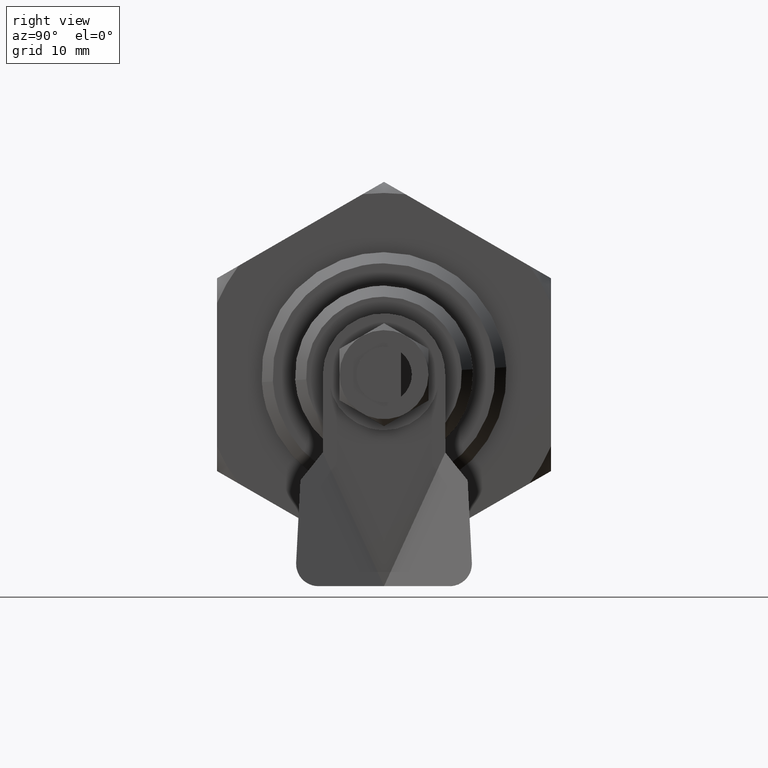
[diagram: clean part render]
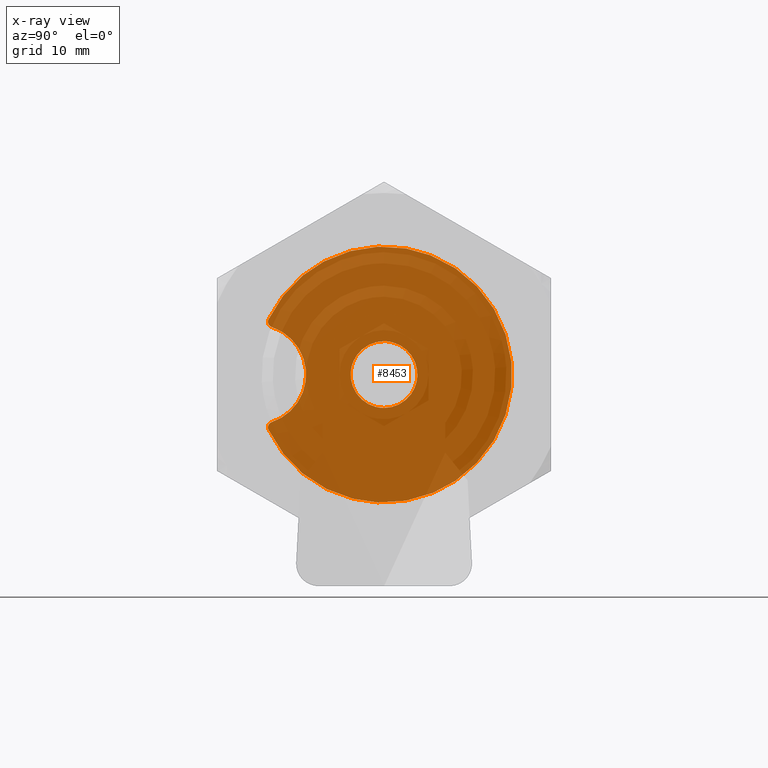
[diagram: x-ray — body ghosted, one internal face saturated and labeled with its STEP entity id]
A machine part, right view, then the same camera in x-ray: the body is ghosted and one INTERNAL B-rep face — a face not visible from any outside direction — is saturated and labeled: STEP entity #8453.
In plain terms, the highlighted face is a freeform B-spline surface patch.
Its self-contained STEP definition (entity closure, byte-faithful):
#6066=CARTESIAN_POINT('',(-3.0,-10.375000000000000,-4.960783708246139));
#6067=VERTEX_POINT('',#6066);
#6073=CARTESIAN_POINT('',(-3.0,-10.081521739130361,-4.270587714055375));
#6074=VERTEX_POINT('',#6073);
#6075=CARTESIAN_POINT('',(-3.0,-10.081521739130361,-4.270587714055375));
#6076=CARTESIAN_POINT('',(-2.999999999999999,-10.144427004500139,-4.291409543678626));
#6077=CARTESIAN_POINT('',(-3.0,-10.249960662346391,-4.351885939785753));
#6078=CARTESIAN_POINT('',(-2.999999999999997,-10.350029560358781,-4.472279670660819));
#6079=CARTESIAN_POINT('',(-3.000000000000002,-10.403542124558500,-4.589458539290573));
#6080=CARTESIAN_POINT('',(-3.0,-10.425096560640970,-4.694016873653989));
#6081=CARTESIAN_POINT('',(-3.0,-10.423978895763881,-4.822663650156724));
#6082=CARTESIAN_POINT('',(-3.000000000000002,-10.399808979926259,-4.908991491892743));
#6083=CARTESIAN_POINT('',(-3.0,-10.375000000000000,-4.960783708246139));
#6084=B_SPLINE_CURVE_WITH_KNOTS('',3,(#6075,#6076,#6077,#6078,#6079,#6080,#6081,#6082,#6083),.UNSPECIFIED.,.F.,.U.,(4,1,1,1,1,1,4),(0.000000120719176,0.198769517515620,0.357800330007511,0.463791559353977,0.583055748970281,0.675819888797659,0.848086890688263),.UNSPECIFIED.);
#6085=EDGE_CURVE('',#6074,#6067,#6084,.T.);
#6562=CARTESIAN_POINT('',(-3.0,-10.375000000000000,4.960783708246150));
#6563=VERTEX_POINT('',#6562);
#6564=CARTESIAN_POINT('',(-3.0,-10.081521739130361,4.270587714055380));
#6565=VERTEX_POINT('',#6564);
#6566=CARTESIAN_POINT('',(-3.0,-10.375000000000000,4.960783708246150));
#6567=CARTESIAN_POINT('',(-3.0,-10.397880922166120,4.912974087735904));
#6568=CARTESIAN_POINT('',(-3.000000000000004,-10.430800246160061,4.801420717249765));
#6569=CARTESIAN_POINT('',(-2.999999999999996,-10.421008321656171,4.630954316693514));
#6570=CARTESIAN_POINT('',(-2.999999999999999,-10.359693942066190,4.486893762023737));
#6571=CARTESIAN_POINT('',(-3.000000000000002,-10.253367471220360,4.355459783987173));
#6572=CARTESIAN_POINT('',(-2.999999999999989,-10.152845709354761,4.294152364855282));
#6573=CARTESIAN_POINT('',(-3.0,-10.081521739130361,4.270587714055380));
#6574=B_SPLINE_CURVE_WITH_KNOTS('',3,(#6566,#6567,#6568,#6569,#6570,#6571,#6572,#6573),.UNSPECIFIED.,.F.,.U.,(4,1,1,1,1,4),(0.000000120719864,0.159012363986096,0.344542827275577,0.503544184132246,0.622812902500121,0.848086890688275),.UNSPECIFIED.);
#6575=EDGE_CURVE('',#6563,#6565,#6574,.T.);
#6618=CARTESIAN_POINT('',(-3.0,-10.081521739130361,4.270587714055380));
#6619=CARTESIAN_POINT('',(-3.000000000000002,-9.817361187183847,4.182880748261372));
#6620=CARTESIAN_POINT('',(-2.999999999999995,-9.372779666887167,3.987747564693500));
#6621=CARTESIAN_POINT('',(-3.000000000000006,-8.670168249743034,3.532887210122185));
#6622=CARTESIAN_POINT('',(-2.999999999999994,-8.028739993894636,2.923070380189197));
#6623=CARTESIAN_POINT('',(-3.000000000000006,-7.515428719378035,2.149622839242553));
#6624=CARTESIAN_POINT('',(-2.999999999999995,-7.226593458179411,1.457775827016109));
#6625=CARTESIAN_POINT('',(-3.000000000000070,-7.042243116987399,0.747566234555832));
#6626=CARTESIAN_POINT('',(-2.999999999999842,-6.978114661968220,0.058394448381308));
#6627=CARTESIAN_POINT('',(-3.000000000000086,-7.033169137033585,-0.644286370234684));
#6628=CARTESIAN_POINT('',(-2.999999999999939,-7.173889060055823,-1.304714332127339));
#6629=CARTESIAN_POINT('',(-3.000000000000058,-7.410993548253790,-1.922874859228294));
#6630=CARTESIAN_POINT('',(-3.000000000000005,-7.769960486737938,-2.546193178455519));
#6631=CARTESIAN_POINT('',(-2.999999999999998,-8.162004974653630,-3.042045140459040));
#6632=CARTESIAN_POINT('',(-2.999999999999994,-8.642954891015819,-3.494866084368763));
#6633=CARTESIAN_POINT('',(-3.000000000000036,-9.253282634603966,-3.929283176599849));
#6634=CARTESIAN_POINT('',(-2.999999999999933,-9.761734180754619,-4.164440432226903));
#6635=CARTESIAN_POINT('',(-3.0,-10.081521739130361,-4.270587714055375));
#6636=B_SPLINE_CURVE_WITH_KNOTS('',3,(#6618,#6619,#6620,#6621,#6622,#6623,#6624,#6625,#6626,#6627,#6628,#6629,#6630,#6631,#6632,#6633,#6634,#6635),.UNSPECIFIED.,.F.,.U.,(4,1,1,1,1,1,1,1,1,1,1,1,1,1,1,4),(0.000000059060595,0.835017634618753,1.450328046079143,2.505114798525291,3.472008496015178,4.219155370064609,4.746543220601860,5.669454430842701,6.284760380647293,6.856098841667628,7.691133469919738,8.262482442394212,9.009624038195646,9.580971190900453,10.240222712751390,11.251040222507809),.UNSPECIFIED.);
#6637=EDGE_CURVE('',#6565,#6074,#6636,.T.);
#8310=CARTESIAN_POINT('',(-3.0,-10.375000000000000,4.960783708246150));
#8311=CARTESIAN_POINT('',(-3.000000000000012,-10.036346775854360,5.669326877791209));
#8312=CARTESIAN_POINT('',(-2.999999999999982,-9.353812850222900,6.786054980062534));
#8313=CARTESIAN_POINT('',(-3.000000000000001,-8.031633509452812,8.298878824732960));
#8314=CARTESIAN_POINT('',(-3.000000000000012,-6.691052347701572,9.413230384291746));
#8315=CARTESIAN_POINT('',(-2.999999999999991,-5.371979824041510,10.193908245507620));
#8316=CARTESIAN_POINT('',(-3.000000000000015,-4.185744911453012,10.733114662623461));
#8317=CARTESIAN_POINT('',(-2.999999999999974,-2.968858633639943,11.142064416410401));
#8318=CARTESIAN_POINT('',(-3.000000000000068,-1.628604110937322,11.410258114690849));
#8319=CARTESIAN_POINT('',(-2.999999999999881,-0.391134188072619,11.511429216486381));
#8320=CARTESIAN_POINT('',(-3.000000000000254,1.036152752099145,11.489441715926400));
#8321=CARTESIAN_POINT('',(-2.999999999999678,2.677288595769033,11.241042452358750));
#8322=CARTESIAN_POINT('',(-3.000000000000007,4.330460650607656,10.693065378331360));
#8323=CARTESIAN_POINT('',(-3.000000000000065,5.556085011341724,10.089563938460561));
#8324=CARTESIAN_POINT('',(-2.999999999999933,6.769372541482296,9.338125055393451));
#8325=CARTESIAN_POINT('',(-3.000000000000035,7.911140996047417,8.407324656031710));
#8326=CARTESIAN_POINT('',(-2.999999999999977,9.078630411904943,7.118071716483045));
#8327=CARTESIAN_POINT('',(-3.000000000000064,9.860867585151794,5.970791363193719));
#8328=CARTESIAN_POINT('',(-2.999999999999825,10.500609830722750,4.741357352006614));
#8329=CARTESIAN_POINT('',(-3.000000000000351,10.970449547747780,3.546660684115499));
#8330=CARTESIAN_POINT('',(-2.999999999999707,11.371130850595851,1.982086902627758));
#8331=CARTESIAN_POINT('',(-3.000000000000160,11.528103394060921,0.455162878888529));
#8332=CARTESIAN_POINT('',(-2.999999999999721,11.478735893490351,-0.951108583221429));
#8333=CARTESIAN_POINT('',(-3.000000000000130,11.323450699749831,-2.120036768107664));
#8334=CARTESIAN_POINT('',(-2.999999999999951,11.044476748041021,-3.287733199431693));
#8335=CARTESIAN_POINT('',(-3.000000000000012,10.568489082836249,-4.612143887444417));
#8336=CARTESIAN_POINT('',(-2.999999999999999,9.956444638552009,-5.811901331795390));
#8337=CARTESIAN_POINT('',(-3.000000000000003,9.146996059998266,-7.012936859339333));
#8338=CARTESIAN_POINT('',(-3.000000000000001,8.257002863013508,-8.050612163402070));
#8339=CARTESIAN_POINT('',(-2.999999999999998,6.994612921766616,-9.186047575317581));
#8340=CARTESIAN_POINT('',(-3.000000000000001,5.656944198875025,-10.060203961574780));
#8341=CARTESIAN_POINT('',(-3.0,4.285676078474689,-10.694439199166810));
#8342=CARTESIAN_POINT('',(-3.000000000000001,3.110334010100310,-11.094580155559150));
#8343=CARTESIAN_POINT('',(-3.000000000000001,1.817608441049536,-11.384085682236590));
#8344=CARTESIAN_POINT('',(-3.000000000000001,0.189586996686004,-11.545869782880411));
#8345=CARTESIAN_POINT('',(-3.000000000000004,-1.447197075389648,-11.451928717587210));
#8346=CARTESIAN_POINT('',(-2.999999999999999,-2.885889112488245,-11.151830009901779));
#8347=CARTESIAN_POINT('',(-3.000000000000001,-4.109075834527331,-10.766327476145920));
#8348=CARTESIAN_POINT('',(-2.999999999999999,-5.208047479413183,-10.281018457404841));
#8349=CARTESIAN_POINT('',(-3.000000000000005,-6.368911712690024,-9.602308620487507));
#8350=CARTESIAN_POINT('',(-3.000000000000010,-7.434294389618564,-8.814242743544121));
#8351=CARTESIAN_POINT('',(-2.999999999999750,-8.586223569421378,-7.711563236729641));
#8352=CARTESIAN_POINT('',(-3.000000000000987,-9.592626277997619,-6.419251979021266));
#8353=CARTESIAN_POINT('',(-2.999999999998174,-10.152144453021300,-5.426898094348563));
#8354=CARTESIAN_POINT('',(-3.0,-10.375000000000000,-4.960783708246139));
#8355=B_SPLINE_CURVE_WITH_KNOTS('',3,(#8310,#8311,#8312,#8313,#8314,#8315,#8316,#8317,#8318,#8319,#8320,#8321,#8322,#8323,#8324,#8325,#8326,#8327,#8328,#8329,#8330,#8331,#8332,#8333,#8334,#8335,#8336,#8337,#8338,#8339,#8340,#8341,#8342,#8343,#8344,#8345,#8346,#8347,#8348,#8349,#8350,#8351,#8352,#8353,#8354),.UNSPECIFIED.,.F.,.U.,(4,1,1,1,1,1,1,1,1,1,1,1,1,1,1,1,1,1,1,1,1,1,1,1,1,1,1,1,1,1,1,1,1,1,1,1,1,1,1,1,1,1,4),(0.000000102487014,2.355916691326613,3.905894450450937,6.013837753199056,7.563804944217203,8.493783522896806,9.919748211097314,11.407713183255280,12.585690211086421,13.639670653091949,15.685579291948409,17.545528135638829,18.847494659330021,19.777474074246712,21.823431212701021,23.249399232991021,24.985356885836911,25.977340022049070,27.403294436866680,28.829263689353301,30.813220707990759,31.991148102745591,33.045123240703809,34.347109973960059,35.587066184796747,37.261030799712458,38.377006502157158,39.926971538013170,41.352931565840201,43.460878958491612,44.700844195501588,45.878835737356418,47.180774264363350,48.668732170372763,50.776671839933726,52.078642724265421,53.070625567776503,54.620587470624827,55.674564152873252,57.100525427174617,58.588490231665489,60.448440917923833,61.998394557936351),.UNSPECIFIED.);
#8356=EDGE_CURVE('',#6563,#6067,#8355,.T.);
#8376=CARTESIAN_POINT('',(-3.0,12.595098863714149,12.648833272473199));
#8377=CARTESIAN_POINT('',(-3.0,-11.519001477916539,12.648833272473199));
#8378=CARTESIAN_POINT('',(-3.0,12.595098863714149,-12.648832510068690));
#8379=CARTESIAN_POINT('',(-3.0,-11.519001477916539,-12.648832510068690));
#8380=B_SPLINE_SURFACE_WITH_KNOTS('',1,1,((#8376,#8378),(#8377,#8379)),.UNSPECIFIED.,.F.,.F.,.U.,(2,2),(2,2),(0.0,24.114100341630689),(0.0,25.297665782541891),.UNSPECIFIED.);
#8381=ORIENTED_EDGE('',*,*,#6637,.T.);
#8382=ORIENTED_EDGE('',*,*,#6085,.T.);
#8383=ORIENTED_EDGE('',*,*,#8356,.F.);
#8384=ORIENTED_EDGE('',*,*,#6575,.T.);
#8385=EDGE_LOOP('',(#8381,#8382,#8383,#8384));
#8386=FACE_OUTER_BOUND('',#8385,.T.);
#8387=CARTESIAN_POINT('',(-3.0,-2.842171E-014,3.000000000000014));
#8388=VERTEX_POINT('',#8387);
#8389=CARTESIAN_POINT('',(-3.0,-2.990752001193735,0.235377287255500));
#8390=VERTEX_POINT('',#8389);
#8391=CARTESIAN_POINT('',(-3.0,-2.842171E-014,3.000000000000014));
#8392=CARTESIAN_POINT('',(-3.000000000000000,-2.773171474907719,3.000000000000015));
#8393=CARTESIAN_POINT('',(-3.000000000000000,-2.990752001193750,0.235377287255509));
#8401=(BOUNDED_CURVE()B_SPLINE_CURVE(2,(#8391,#8392,#8393),.UNSPECIFIED.,.F.,.U.)B_SPLINE_CURVE_WITH_KNOTS((3,3),(0.500000000000000,0.736331300628642),.UNSPECIFIED.)CURVE()GEOMETRIC_REPRESENTATION_ITEM()RATIONAL_B_SPLINE_CURVE((1.0,0.723120658610029,0.969723356163208))REPRESENTATION_ITEM(''));
#8402=EDGE_CURVE('',#8388,#8390,#8401,.T.);
#8403=ORIENTED_EDGE('',*,*,#8402,.F.);
#8404=CARTESIAN_POINT('',(-3.000000000000001,2.990752001193706,-0.235377287255490));
#8405=VERTEX_POINT('',#8404);
#8406=CARTESIAN_POINT('',(-3.000000000000000,2.990752001193706,-0.235377287255490));
#8407=CARTESIAN_POINT('',(-3.0,2.999999999999972,-0.117870321059142));
#8408=CARTESIAN_POINT('',(-3.0,2.999999999999972,1.421085E-014));
#8409=CARTESIAN_POINT('',(-3.0,2.999999999999971,3.000000000000015));
#8410=CARTESIAN_POINT('',(-3.0,-2.842171E-014,3.000000000000014));
#8418=(BOUNDED_CURVE()B_SPLINE_CURVE(2,(#8406,#8407,#8408,#8409,#8410),.UNSPECIFIED.,.F.,.U.)B_SPLINE_CURVE_WITH_KNOTS((3,2,3),(0.236331300628642,0.250000000000000,0.500000000000000),.UNSPECIFIED.)CURVE()GEOMETRIC_REPRESENTATION_ITEM()RATIONAL_B_SPLINE_CURVE((0.969723356163207,0.983986122576518,1.0,0.707106781186548,1.0))REPRESENTATION_ITEM(''));
#8419=EDGE_CURVE('',#8405,#8388,#8418,.T.);
#8420=ORIENTED_EDGE('',*,*,#8419,.F.);
#8421=CARTESIAN_POINT('',(-3.0,-2.842171E-014,-2.999999999999986));
#8422=VERTEX_POINT('',#8421);
#8423=CARTESIAN_POINT('',(-3.0,-2.842171E-014,-2.999999999999986));
#8424=CARTESIAN_POINT('',(-3.000000000000001,2.773171474907660,-2.999999999999986));
#8425=CARTESIAN_POINT('',(-3.000000000000000,2.990752001193692,-0.235377287255482));
#8433=(BOUNDED_CURVE()B_SPLINE_CURVE(2,(#8423,#8424,#8425),.UNSPECIFIED.,.F.,.U.)B_SPLINE_CURVE_WITH_KNOTS((3,3),(0.0,0.236331300628642),.UNSPECIFIED.)CURVE()GEOMETRIC_REPRESENTATION_ITEM()RATIONAL_B_SPLINE_CURVE((1.0,0.723120658610029,0.969723356163207))REPRESENTATION_ITEM(''));
#8434=EDGE_CURVE('',#8422,#8405,#8433,.T.);
#8435=ORIENTED_EDGE('',*,*,#8434,.F.);
#8436=CARTESIAN_POINT('',(-3.000000000000000,-2.990752001193735,0.235377287255500));
#8437=CARTESIAN_POINT('',(-3.000000000000000,-3.000000000000029,0.117870321059170));
#8438=CARTESIAN_POINT('',(-3.0,-3.000000000000029,1.421085E-014));
#8439=CARTESIAN_POINT('',(-3.0,-3.000000000000028,-2.999999999999985));
#8440=CARTESIAN_POINT('',(-3.0,-2.842171E-014,-2.999999999999986));
#8448=(BOUNDED_CURVE()B_SPLINE_CURVE(2,(#8436,#8437,#8438,#8439,#8440),.UNSPECIFIED.,.F.,.U.)B_SPLINE_CURVE_WITH_KNOTS((3,2,3),(0.736331300628642,0.750000000000000,1.0),.UNSPECIFIED.)CURVE()GEOMETRIC_REPRESENTATION_ITEM()RATIONAL_B_SPLINE_CURVE((0.969723356163208,0.983986122576519,1.0,0.707106781186548,1.0))REPRESENTATION_ITEM(''));
#8449=EDGE_CURVE('',#8390,#8422,#8448,.T.);
#8450=ORIENTED_EDGE('',*,*,#8449,.F.);
#8451=EDGE_LOOP('',(#8403,#8420,#8435,#8450));
#8452=FACE_BOUND('',#8451,.T.);
#8453=ADVANCED_FACE('',(#8386,#8452),#8380,.T.);